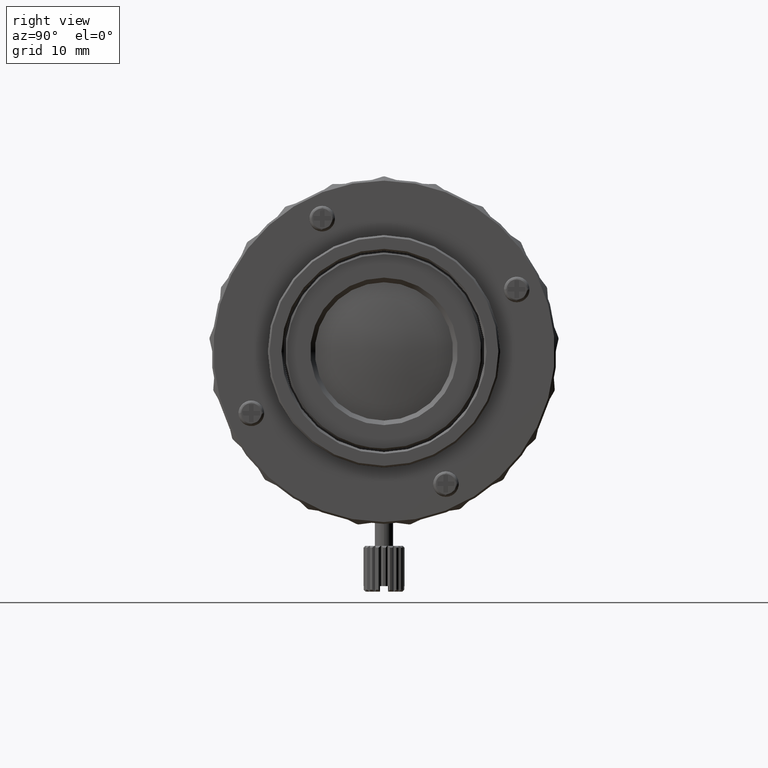
[diagram: clean part render]
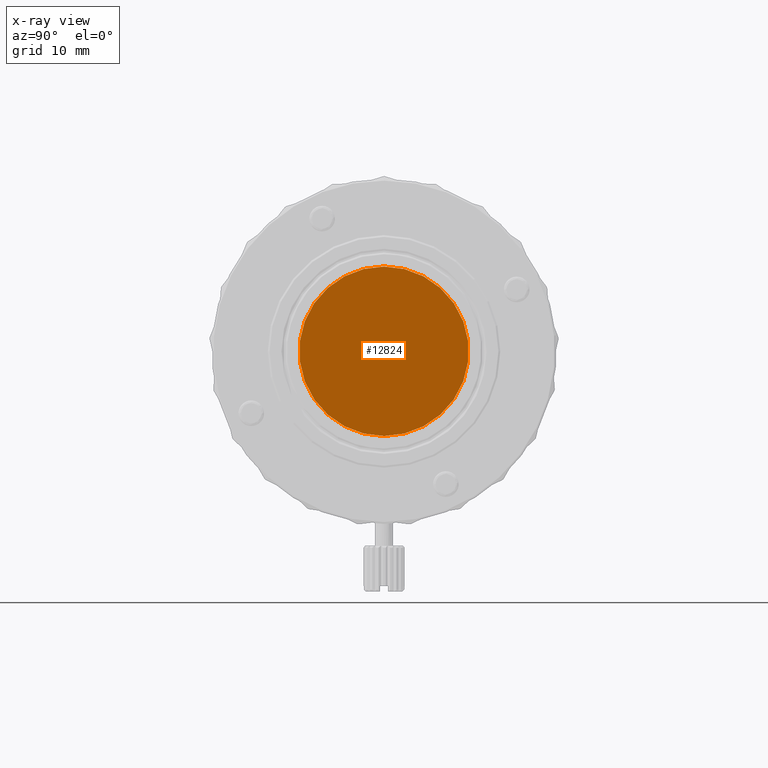
[diagram: x-ray — body ghosted, one internal face saturated and labeled with its STEP entity id]
A machine part, right view, then the same camera in x-ray: the body is ghosted and one INTERNAL B-rep face — a face not visible from any outside direction — is saturated and labeled: STEP entity #12824.
In plain terms, the highlighted planar face has unit normal (-1, 0, 0).
Its self-contained STEP definition (entity closure, byte-faithful):
#2353 = EDGE_CURVE ( 'NONE', #36046, #4370, #7444, .T. ) ;
#4370 = VERTEX_POINT ( 'NONE', #8198 ) ;
#4647 = DIRECTION ( 'NONE',  ( -1.000000000000000000, 0.000000000000000000, 0.000000000000000000 ) ) ;
#7444 = CIRCLE ( 'NONE', #11077, 9.257003192625999688 ) ;
#8198 = CARTESIAN_POINT ( 'NONE',  ( 15.70949673902000043, 0.000000000000000000, -9.257003192625999688 ) ) ;
#11077 = AXIS2_PLACEMENT_3D ( 'NONE', #30689, #4647, #36587 ) ;
#11103 = FACE_OUTER_BOUND ( 'NONE', #37493, .T. ) ;
#11299 = CARTESIAN_POINT ( 'NONE',  ( 15.70949673902000043, 0.000000000000000000, 0.000000000000000000 ) ) ;
#12824 = ADVANCED_FACE ( 'NONE', ( #11103 ), #31804, .F. ) ;
#13601 = CIRCLE ( 'NONE', #16661, 9.257003192625999688 ) ;
#13669 = CARTESIAN_POINT ( 'NONE',  ( 15.70949673902000043, 1.133655932954625971E-15, 9.257003192625999688 ) ) ;
#15118 = DIRECTION ( 'NONE',  ( -1.000000000000000000, 0.000000000000000000, 0.000000000000000000 ) ) ;
#16661 = AXIS2_PLACEMENT_3D ( 'NONE', #17209, #15118, #17395 ) ;
#17209 = CARTESIAN_POINT ( 'NONE',  ( 15.70949673902000043, 0.000000000000000000, 0.000000000000000000 ) ) ;
#17395 = DIRECTION ( 'NONE',  ( 0.000000000000000000, 0.000000000000000000, 1.000000000000000000 ) ) ;
#18141 = ORIENTED_EDGE ( 'NONE', *, *, #24253, .F. ) ;
#20031 = DIRECTION ( 'NONE',  ( -1.000000000000000000, 0.000000000000000000, 0.000000000000000000 ) ) ;
#22675 = DIRECTION ( 'NONE',  ( 0.000000000000000000, 0.000000000000000000, 1.000000000000000000 ) ) ;
#24253 = EDGE_CURVE ( 'NONE', #4370, #36046, #13601, .T. ) ;
#26506 = AXIS2_PLACEMENT_3D ( 'NONE', #11299, #20031, #22675 ) ;
#30689 = CARTESIAN_POINT ( 'NONE',  ( 15.70949673902000043, 0.000000000000000000, 0.000000000000000000 ) ) ;
#31804 = PLANE ( 'NONE',  #26506 ) ;
#36046 = VERTEX_POINT ( 'NONE', #13669 ) ;
#36097 = ORIENTED_EDGE ( 'NONE', *, *, #2353, .F. ) ;
#36587 = DIRECTION ( 'NONE',  ( 0.000000000000000000, 0.000000000000000000, 1.000000000000000000 ) ) ;
#37493 = EDGE_LOOP ( 'NONE', ( #18141, #36097 ) ) ;